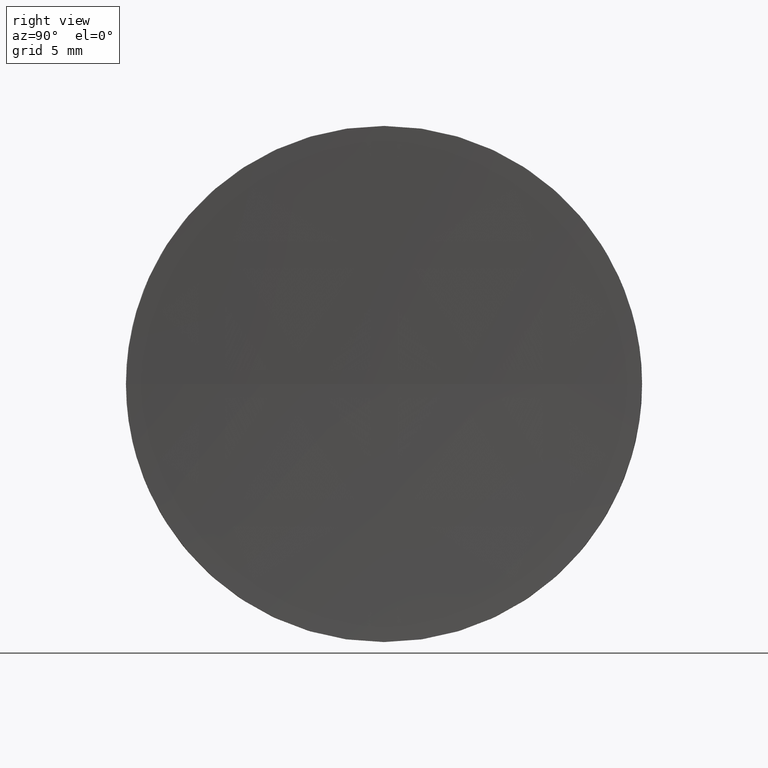
[diagram: clean part render]
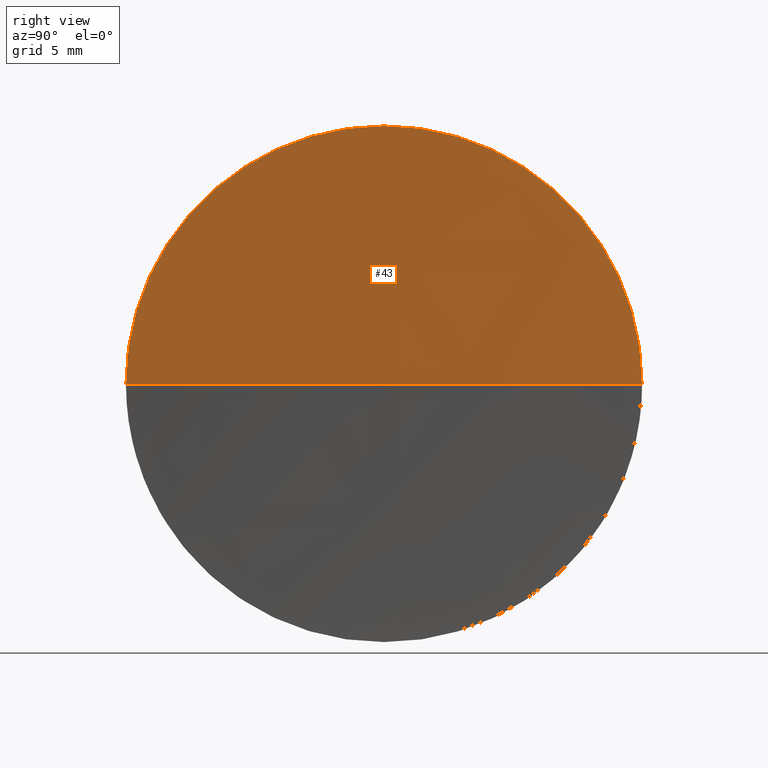
[diagram: same view with one face highlighted and labeled with its STEP entity id]
A machine part, right view. The second image highlights one B-rep face of the part: STEP entity #43.
In plain terms, the highlighted spherical surface has radius 280.5 mm.
Its self-contained STEP definition (entity closure, byte-faithful):
#6 = CARTESIAN_POINT ( 'NONE',  ( 402.0068341785477100, 71.19398908659368900, 0.0000000000000000000 ) ) ;
#14 = CIRCLE ( 'NONE', #74, 280.4999999999999400 ) ;
#17 = DIRECTION ( 'NONE',  ( 0.0000000000000000000, 0.0000000000000000000, 1.000000000000000000 ) ) ;
#19 = CARTESIAN_POINT ( 'NONE',  ( 121.7944861280022900, 71.19398908659370300, 0.0000000000000000000 ) ) ;
#22 = DIRECTION ( 'NONE',  ( 0.0000000000000000000, 0.0000000000000000000, 1.000000000000000000 ) ) ;
#23 = CARTESIAN_POINT ( 'NONE',  ( 121.5068341785477300, 71.19398908659370300, 0.0000000000000000000 ) ) ;
#24 = CARTESIAN_POINT ( 'NONE',  ( 121.7944861280022900, 71.19398908659370300, 0.0000000000000000000 ) ) ;
#32 = EDGE_CURVE ( 'NONE', #161, #144, #14, .T. ) ;
#34 = DIRECTION ( 'NONE',  ( 1.000000000000000000, 0.0000000000000000000, 0.0000000000000000000 ) ) ;
#37 = FACE_OUTER_BOUND ( 'NONE', #39, .T. ) ;
#38 = DIRECTION ( 'NONE',  ( 0.0000000000000000000, 0.0000000000000000000, 1.000000000000000000 ) ) ;
#39 = EDGE_LOOP ( 'NONE', ( #86, #118, #81, #97 ) ) ;
#43 = ADVANCED_FACE ( 'NONE', ( #37 ), #75, .F. ) ;
#46 = EDGE_CURVE ( 'NONE', #115, #161, #164, .T. ) ;
#57 = AXIS2_PLACEMENT_3D ( 'NONE', #6, #167, #83 ) ;
#68 = DIRECTION ( 'NONE',  ( -1.000000000000000000, -0.0000000000000000000, -0.0000000000000000000 ) ) ;
#74 = AXIS2_PLACEMENT_3D ( 'NONE', #113, #22, #34 ) ;
#75 = SPHERICAL_SURFACE ( 'NONE', #57, 280.5000000000000000 ) ;
#81 = ORIENTED_EDGE ( 'NONE', *, *, #32, .F. ) ;
#83 = DIRECTION ( 'NONE',  ( 0.0000000000000000000, 1.000000000000000000, 0.0000000000000000000 ) ) ;
#86 = ORIENTED_EDGE ( 'NONE', *, *, #89, .F. ) ;
#89 = EDGE_CURVE ( 'NONE', #172, #115, #155, .T. ) ;
#90 = CIRCLE ( 'NONE', #166, 280.5000000000000000 ) ;
#92 = AXIS2_PLACEMENT_3D ( 'NONE', #24, #68, #38 ) ;
#96 = AXIS2_PLACEMENT_3D ( 'NONE', #19, #123, #17 ) ;
#97 = ORIENTED_EDGE ( 'NONE', *, *, #46, .F. ) ;
#102 = CARTESIAN_POINT ( 'NONE',  ( 121.7944861280023000, 83.89398908659332200, 0.0000000000000000000 ) ) ;
#106 = DIRECTION ( 'NONE',  ( 0.0000000000000000000, 1.000000000000000000, 1.224646799147353000E-016 ) ) ;
#107 = EDGE_CURVE ( 'NONE', #172, #144, #90, .T. ) ;
#113 = CARTESIAN_POINT ( 'NONE',  ( 402.0068341785477100, 71.19398908659368900, 0.0000000000000000000 ) ) ;
#115 = VERTEX_POINT ( 'NONE', #137 ) ;
#118 = ORIENTED_EDGE ( 'NONE', *, *, #107, .T. ) ;
#123 = DIRECTION ( 'NONE',  ( -1.000000000000000000, -0.0000000000000000000, -0.0000000000000000000 ) ) ;
#137 = CARTESIAN_POINT ( 'NONE',  ( 121.7944861280022900, 71.19398908659370300, 12.70000000000000300 ) ) ;
#141 = CARTESIAN_POINT ( 'NONE',  ( 121.7944861280023000, 58.49398908659407700, -1.555301434917091100E-015 ) ) ;
#144 = VERTEX_POINT ( 'NONE', #23 ) ;
#146 = CARTESIAN_POINT ( 'NONE',  ( 402.0068341785477100, 71.19398908659368900, 0.0000000000000000000 ) ) ;
#155 = CIRCLE ( 'NONE', #96, 12.70000000000000300 ) ;
#161 = VERTEX_POINT ( 'NONE', #102 ) ;
#164 = CIRCLE ( 'NONE', #92, 12.70000000000000300 ) ;
#166 = AXIS2_PLACEMENT_3D ( 'NONE', #146, #173, #106 ) ;
#167 = DIRECTION ( 'NONE',  ( 0.0000000000000000000, 0.0000000000000000000, -1.000000000000000000 ) ) ;
#172 = VERTEX_POINT ( 'NONE', #141 ) ;
#173 = DIRECTION ( 'NONE',  ( 0.0000000000000000000, 1.224646799147353200E-016, -1.000000000000000000 ) ) ;